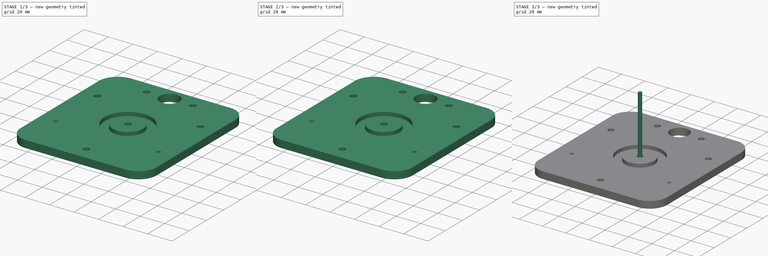
[diagram: build sequence overview — one tinted view per stage of 3, left to right]
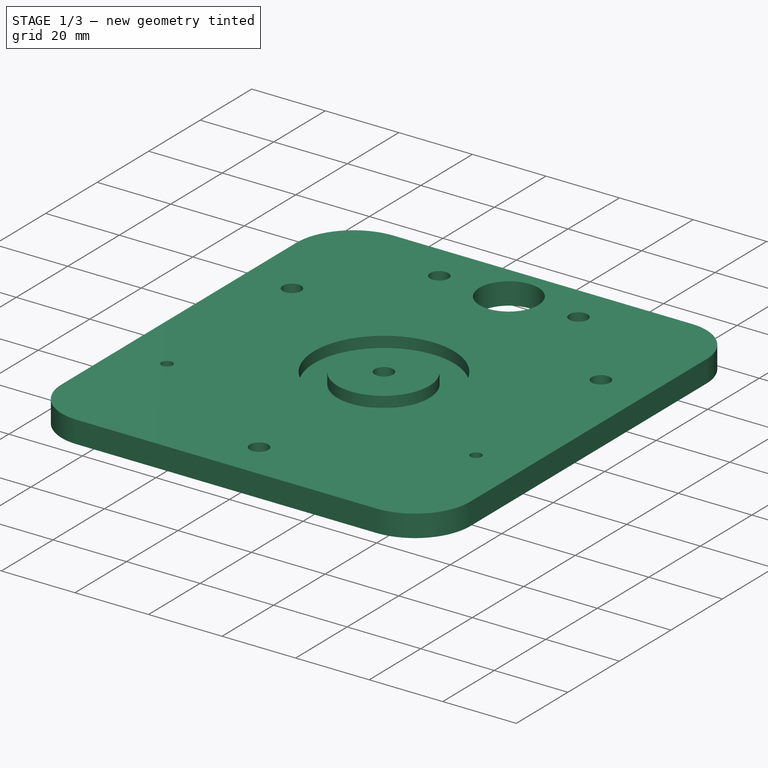
[diagram: stage 1 of 3 — iso view after this stage's code; geometry added in this stage tinted green]
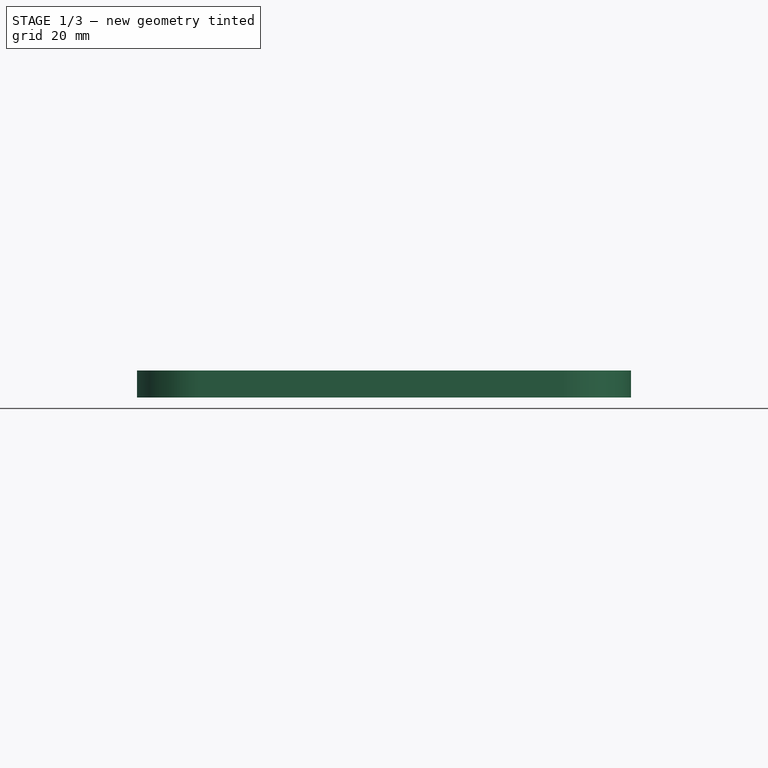
[diagram: stage 1 of 3 — front view after this stage's code; geometry added in this stage tinted green]
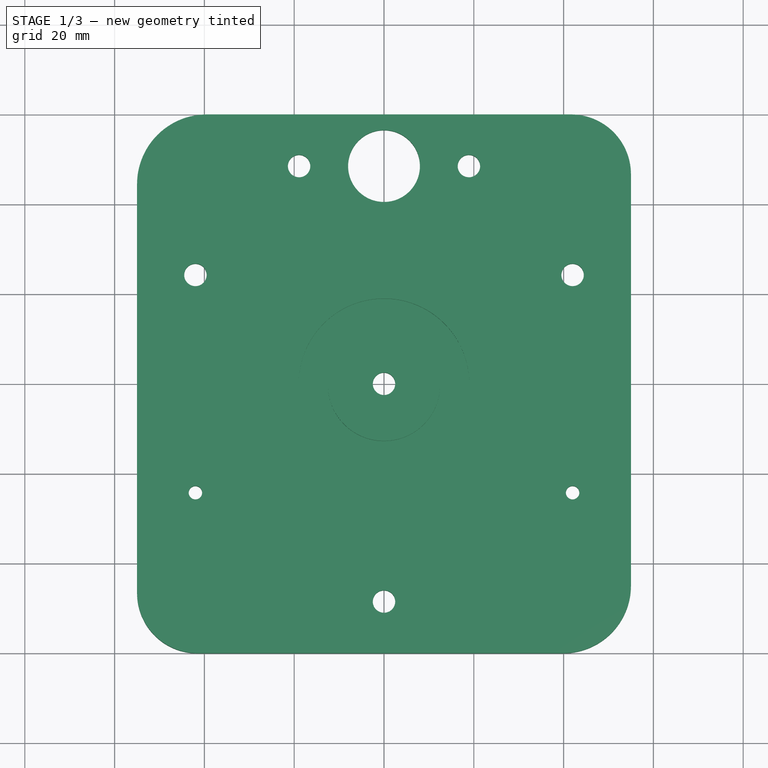
[diagram: stage 1 of 3 — top view after this stage's code; geometry added in this stage tinted green]
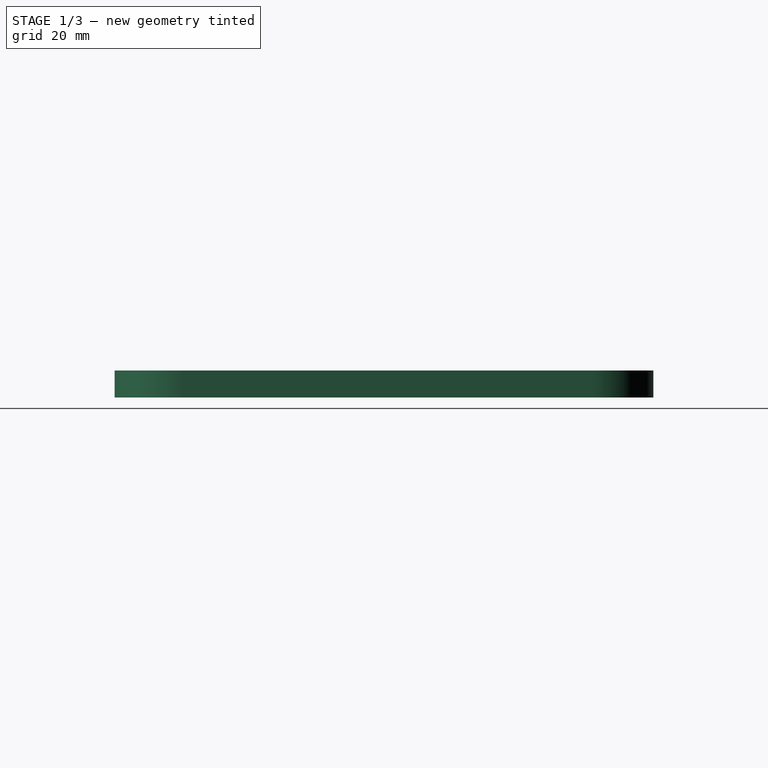
[diagram: stage 1 of 3 — right view after this stage's code; geometry added in this stage tinted green]
FCSTD DOCUMENT  (FreeCAD 0.20R29603 (Git))
Label: Base_board_for_manual_test
License: All rights reserved
LicenseURL: http://en.wikipedia.org/wiki/All_rights_reserved
objects: Path::FeaturePython×8, Part::FeaturePython×3, App::DocumentObjectGroup×3, Sketcher::SketchObject×2, PartDesign::Pad×1, App::FeaturePython×1, PartDesign::Pocket×1, PartDesign::Body×1
note: 15 computed .brp shape members not serialized (recipe doc carries the construction recipe); baked Part::Feature solids carry a one-line shape summary decoded from their .brp

FEATURE [Sketcher::SketchObject] Sketch
  FullyConstrained = false
  MapMode = 5
  Support = -> [XY_Plane]
  sketch-geometry (27):
    g0: LineSegment StartX=-55 StartY=-46.5765 StartZ=0 EndX=-55 EndY=44.4437 EndZ=0
    g1: LineSegment StartX=-39.4437 StartY=60 StartZ=0 EndX=41.6436 EndY=60 EndZ=0
    g2: LineSegment StartX=55 StartY=46.6436 StartZ=0 EndX=55 EndY=-44.9183 EndZ=0
    g3: LineSegment StartX=39.9183 StartY=-60 StartZ=0 EndX=-41.5765 EndY=-60 EndZ=0
    g4: GeomPoint X=-4.45e-14 Y=0 Z=0
    g5: Circle CenterX=-4.45e-14 CenterY=0 CenterZ=0 NormalX=0 NormalY=0 NormalZ=1 AngleXU=0 Radius=2.5
    g6: Circle CenterX=-4.45e-14 CenterY=0 CenterZ=0 NormalX=0 NormalY=0 NormalZ=1 AngleXU=0 Radius=48.5
    g7: Circle CenterX=-4.45e-14 CenterY=48.5 CenterZ=0 NormalX=0 NormalY=0 NormalZ=1 AngleXU=0 Radius=8
    g8: ArcOfCircle CenterX=-4.45e-14 CenterY=0 CenterZ=0 NormalX=0 NormalY=0 NormalZ=1 AngleXU=0 Radius=48.5 StartAngle=1.5708 EndAngle=3.66519
    g9: ArcOfCircle CenterX=-4.45e-14 CenterY=0 CenterZ=0 NormalX=0 NormalY=0 NormalZ=1 AngleXU=0 Radius=48.5 StartAngle=5.75959 EndAngle=7.85398
    g10: Circle CenterX=-42.0022 CenterY=-24.25 CenterZ=0 NormalX=0 NormalY=0 NormalZ=1 AngleXU=0 Radius=1.5
    g11: Circle CenterX=42.0022 CenterY=-24.25 CenterZ=0 NormalX=0 NormalY=0 NormalZ=1 AngleXU=0 Radius=1.5
    g12: ArcOfCircle CenterX=-39.4437 CenterY=44.4437 CenterZ=0 NormalX=0 NormalY=0 NormalZ=1 AngleXU=0 Radius=15.5563 StartAngle=1.5708 EndAngle=3.14159
    g13: GeomPoint X=-55 Y=60 Z=0
    g14: ArcOfCircle CenterX=41.6436 CenterY=46.6436 CenterZ=0 NormalX=0 NormalY=0 NormalZ=1 AngleXU=0 Radius=13.3564 StartAngle=0 EndAngle=1.5708
    g15: GeomPoint X=55 Y=60 Z=0
    g16: ArcOfCircle CenterX=39.9183 CenterY=-44.9183 CenterZ=0 NormalX=0 NormalY=0 NormalZ=1 AngleXU=0 Radius=15.0817 StartAngle=4.71239 EndAngle=6.28319
    g17: GeomPoint X=55 Y=-60 Z=0
    g18: ArcOfCircle CenterX=-41.5765 CenterY=-46.5765 CenterZ=0 NormalX=0 NormalY=0 NormalZ=1 AngleXU=0 Radius=13.4235 StartAngle=3.14159 EndAngle=4.71239
    g19: GeomPoint X=-55 Y=-60 Z=0
    g20: Circle CenterX=-18.9111 CenterY=48.5 CenterZ=0 NormalX=0 NormalY=0 NormalZ=1 AngleXU=0 Radius=2.5
    g21: Circle CenterX=18.9111 CenterY=48.5 CenterZ=0 NormalX=0 NormalY=0 NormalZ=1 AngleXU=0 Radius=2.5
    g22: Circle CenterX=-4.45e-14 CenterY=-48.5 CenterZ=0 NormalX=0 NormalY=0 NormalZ=1 AngleXU=0 Radius=2.5
    g23: ArcOfCircle CenterX=-4.45e-14 CenterY=0 CenterZ=0 NormalX=0 NormalY=0 NormalZ=1 AngleXU=0 Radius=48.5 StartAngle=4.71239 EndAngle=6.80678
    g24: ArcOfCircle CenterX=-4.45e-14 CenterY=0 CenterZ=0 NormalX=0 NormalY=0 NormalZ=1 AngleXU=0 Radius=48.5 StartAngle=2.61799 EndAngle=4.71239
    g25: Circle CenterX=42.0022 CenterY=24.25 CenterZ=0 NormalX=0 NormalY=0 NormalZ=1 AngleXU=0 Radius=2.5
    g26: Circle CenterX=-42.0022 CenterY=24.25 CenterZ=0 NormalX=0 NormalY=0 NormalZ=1 AngleXU=0 Radius=2.5
  constraints (58):
    c: Horizontal(g1)
    c: Horizontal(g3)
    c: Vertical(g0)
    c: Vertical(g2)
    c: Symmetric(g15,g19,g4)
    c: Coincident(g4,g-1)
    c: Coincident(g5,g4)
    c: Diameter(g5) = 5
    c: Coincident(g6,g5)
    c: Diameter(g6) = 97
    c: PointOnObject(g7,g6)
    c: Vertical(g7,g5)
    c: DistanceX(g19,g17) = 110
    c: DistanceY(g19,g13) = 120
    c: Diameter(g7) = 16
    c: Coincident(g8,g5)
    c: Coincident(g8,g7)
    c: Angle(g8) = 2.0944
    c: Coincident(g9,g5)
    c: Coincident(g9,g7)
    c: Angle(g9) = 2.0944
    c: Coincident(g11,g9)
    c: Equal(g10,g11)
    c: Diameter(g10) = 3
    c: Coincident(g8,g10)
    c: PointOnObject(g13,g0)
    c: PointOnObject(g13,g1)
    c: Tangent(g0,g12) = 1.5708
    c: Tangent(g1,g12) = 1.5708
    c: PointOnObject(g15,g1)
    c: PointOnObject(g15,g2)
    c: Tangent(g1,g14) = 1.5708
    c: Tangent(g2,g14) = 1.5708
    c: PointOnObject(g17,g2)
    c: PointOnObject(g17,g3)
    c: Tangent(g2,g16) = 1.5708
    c: Tangent(g3,g16) = 1.5708
    c: PointOnObject(g19,g0)
    c: PointOnObject(g19,g3)
    c: Tangent(g0,g18) = 1.5708
    c: Tangent(g3,g18) = 1.5708
    c: Symmetric(g20,g21,g7)
    c: Horizontal(g20,g7)
    c: Equal(g20,g21)
    c: Diameter(g20) = 5
    c: Vertical(g22,g5)
    c: PointOnObject(g22,g6)
    c: Coincident(g23,g5)
    c: Coincident(g23,g22)
    c: Coincident(g24,g5)
    c: Coincident(g24,g22)
    c: Angle(g24) = 2.0944
    c: Coincident(g25,g23)
    c: Coincident(g26,g24)
    c: Equal(g22,g26)
    c: Equal(g22,g25)
    c: Diameter(g22) = 5
    c: Angle(g23) = 2.0944
FEATURE [PartDesign::Pad] Pad
  Direction = (0,0,1)
  Length = 6
  Length2 = 10
  Profile = -> Sketch
  ReferenceAxis = -> Sketch [N_Axis]
  Reversed = true
  Type = 0
FEATURE [Path::FeaturePython] _mm_Endmill  label="3mm Endmill001"  # Path/CAM operation (typed FeaturePython)
  HorizFeed = 3.33333
  HorizRapid = 3.33333
  SpindleDir = 0
  SpindleSpeed = 0
  Tool = -> ToolBit001
  ToolNumber = 2
  VertFeed = 1.66667
  VertRapid = 1.66667
  expr: HorizRapid = SetupSheet.HorizRapid
  expr: VertRapid = SetupSheet.VertRapid
FEATURE [App::DocumentObjectGroup] Tools
  Group = -> [_mm_Endmill]
FEATURE [Sketcher::SketchObject] Sketch001
  FullyConstrained = false
  MapMode = 5
  Support = -> [Pad]
  sketch-geometry (2):
    g0: Circle CenterX=0 CenterY=0 CenterZ=0 NormalX=0 NormalY=0 NormalZ=1 AngleXU=0 Radius=19
    g1: Circle CenterX=0 CenterY=-0.224477 CenterZ=0 NormalX=0 NormalY=0 NormalZ=1 AngleXU=0 Radius=12.5
  constraints (4):
    c: Coincident(g0,g-1)
    c: Diameter(g0) = 38
    c: PointOnObject(g1,g-2)
    c: Diameter(g1) = 25
FEATURE [PartDesign::Pocket] Pocket
  BaseFeature = -> Pad
  Direction = (0,0,-1)
  Length = 3
  Length2 = 5
  Profile = -> Sketch001
  ReferenceAxis = -> Sketch001 [N_Axis]
  Type = 0
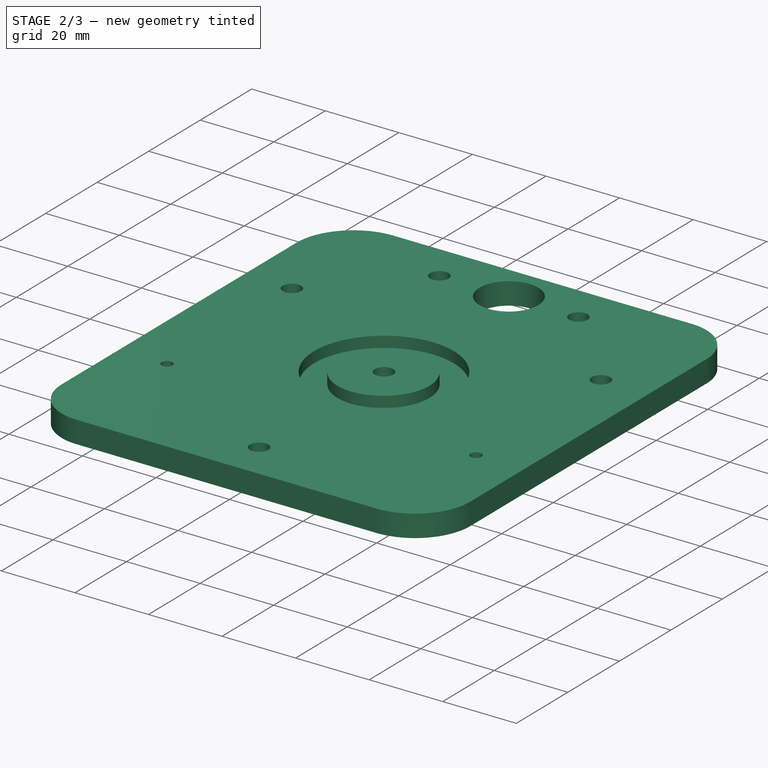
[diagram: stage 2 of 3 — iso view after this stage's code; geometry added in this stage tinted green]
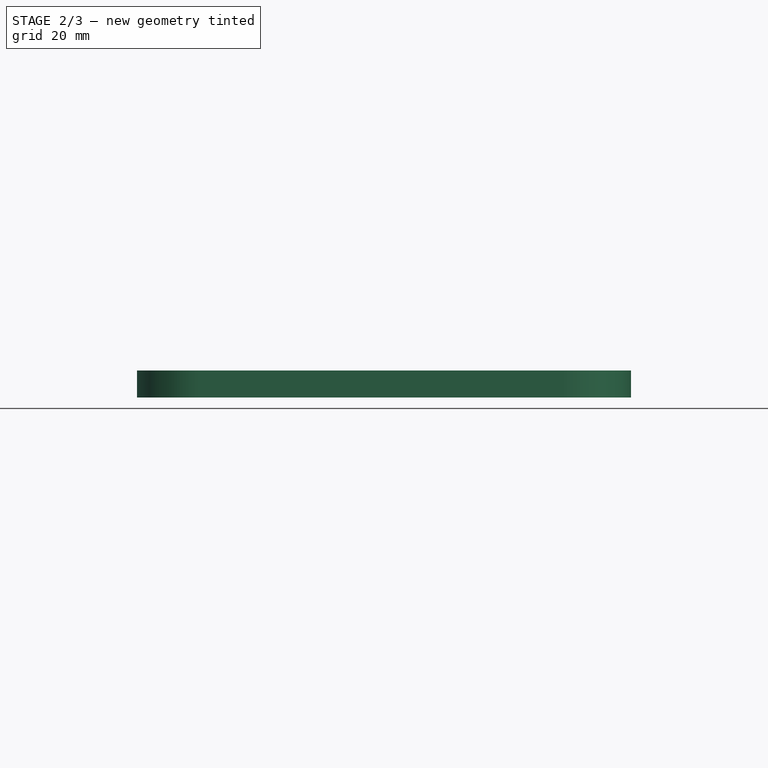
[diagram: stage 2 of 3 — front view after this stage's code; geometry added in this stage tinted green]
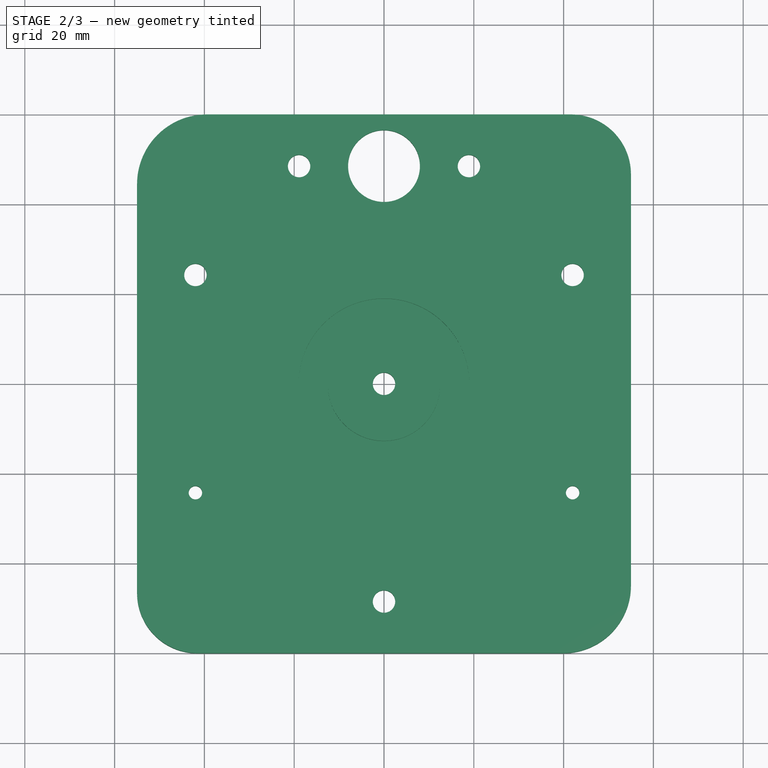
[diagram: stage 2 of 3 — top view after this stage's code; geometry added in this stage tinted green]
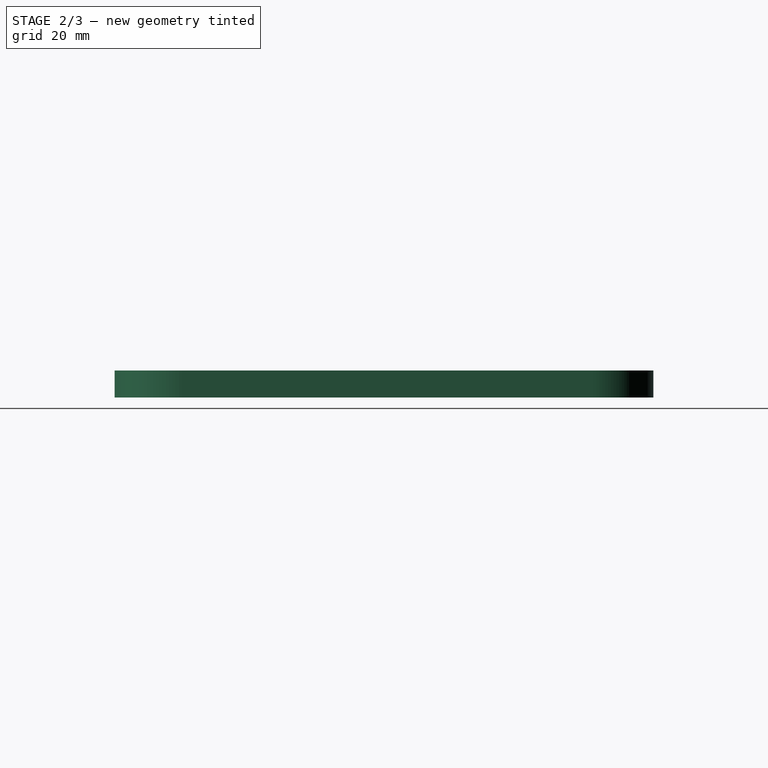
[diagram: stage 2 of 3 — right view after this stage's code; geometry added in this stage tinted green]
FEATURE [App::DocumentObjectGroup] Model
  Group = -> [Clone]
FEATURE [Path::FeaturePython] Adaptive  label="Adaptive_cenral_gear"  # Path/CAM operation (typed FeaturePython)
  Active = true
  Base = -> [Clone]
  ClearanceHeight = 5
  CoolantMode = 0
  CycleTime = 00:22:12
  ExtensionCorners = true
  ExtensionLengthDefault = 1.5
  FinalDepth = -3
  FinishDepth = 0
  FinishingProfile = true
  ForceInsideOut = false
  HelixAngle = 5
  HelixConeAngle = 0
  HelixDiameterLimit = 4
  KeepToolDownRatio = 3
  LiftDistance = 0
  OpFinalDepth = -3
  OpStartDepth = 0
  OpStockZMax = 0
  OpStockZMin = -6
  OpToolDiameter = 3
  OperationType = 1
  SafeHeight = 3
  Side = 1
  StartDepth = 0
  StepDown = 6
  StepOver = 20
  StockToLeave = 0
  StopProcessing = false
  Stopped = false
  Tolerance = 0.1
  ToolController = -> _mm_Endmill
  UseHelixArcs = false
  UseOutline = false
  expr: ClearanceHeight = OpStockZMax + SetupSheet.ClearanceHeightOffset
  expr: ExtensionLengthDefault = OpToolDiameter / 2
  expr: FinalDepth = OpFinalDepth
  expr: SafeHeight = OpStockZMax + SetupSheet.SafeHeightOffset
  expr: StartDepth = OpStartDepth
  expr: StepDown = OpToolDiameter * 2
FEATURE [Path::FeaturePython] Profile  label="Profile_hole"  # Path/CAM operation (typed FeaturePython)
  Active = true
  AreaParams:
    Tolerance = 1e-07
    FitArcs = True
    Simplify = False
    CleanDistance = 0.0
    Accuracy = 0.01
    Unit = 1.0
    MinArcPoints = 4
    MaxArcPoints = 100
    ClipperScale = 10000000.0
    Fill = 0
    Coplanar = 0
    Reorient = True
    Outline = False
    Explode = False
    OpenMode = 0
    Deflection = 0.01
    SubjectFill = 0
    ClipFill = 0
    Offset = -1.5
    ExtraPass = 0
    Stepover = 0.0
    LastStepover = 0.0
    JoinType = 0
    EndType = 0
    MiterLimit = 2.0
    RoundPrecision = 0.0
    PocketMode = 0
    ToolRadius = 1.0
    PocketExtraOffset = 0.0
    PocketStepover = 0.0
    PocketLastStepover = 0.0
    FromCenter = False
    Angle = 45.0
    AngleShift = 0.0
    Shift = 0.0
    Thicken = False
    SectionCount = -1
    Stepdown = 1.0
    SectionOffset = 0.0
    SectionTolerance = 1e-06
    SectionMode = 2
    Project = False
  Base = -> [Clone]
  ClearanceHeight = 5
  CoolantMode = 0
  CycleTime = 00:02:56
  Direction = 0
  FinalDepth = -6
  HandleMultipleFeatures = 0
  JoinType = 0
  MiterLimit = 0.1
  OffsetExtra = 0
  OpFinalDepth = -6
  OpStartDepth = 0
  OpStockZMax = 0
  OpStockZMin = -6
  OpToolDiameter = 3
  PathParams = {'orientation': 1, 'feedrate': 3.3333333333333335, 'feedrate_v': 1.6666666666666667, 'verbose': True, 'resume_height': 3.0, 'retraction': 5.0, 'return_end': True, 'preamble': False, 'start': Vector (17.916873691303817, 48.49040412186528, 5.0)}
  SafeHeight = 3
  Side = 1
  SplitArcs = false
  StartDepth = 0
  StartPoint = (0,0,0)
  StepDown = 3
  ToolController = -> _mm_Endmill
  UseComp = true
  UseStartPoint = false
  processCircles = false
  processHoles = false
  processPerimeter = true
  expr: ClearanceHeight = OpStockZMax + SetupSheet.ClearanceHeightOffset
  expr: FinalDepth = OpFinalDepth
  expr: SafeHeight = OpStockZMax + SetupSheet.SafeHeightOffset
  expr: StartDepth = OpStartDepth
  expr: StepDown = OpToolDiameter
FEATURE [Path::FeaturePython] Drilling  label="Drilling_for_axis"  # Path/CAM operation (typed FeaturePython)
  Active = true
  AddTipLength = false
  Base = -> [Clone]
  ClearanceHeight = 5
  CoolantMode = 0
  CycleTime = 00:00:51
  Disabled = Clone.Face12 | Clone.Face14 | Clone.Face15 | Clone.Face16 | Clone.Face17 | Clone.Face18 | Clone.Face19 | Clone.Face20
  DwellEnabled = false
  DwellTime = 1
  ExtraOffset = 0
  FinalDepth = -2.5
  OpFinalDepth = -3
  OpStartDepth = 0
  OpStockZMax = 0
  OpStockZMin = -6
  OpToolDiameter = 3
  PeckDepth = 0.45
  PeckEnabled = true
  RetractHeight = 3
  ReturnLevel = 0
  SafeHeight = 3
  StartDepth = 0
  ToolController = -> _mm_Endmill
  expr: ClearanceHeight = OpStockZMax + SetupSheet.ClearanceHeightOffset
  expr: FinalDepth = OpFinalDepth + 0.5 mm
  expr: PeckDepth = OpToolDiameter * 0.15
  expr: RetractHeight = StartDepth + SetupSheet.SafeHeightOffset
  expr: SafeHeight = OpStockZMax + SetupSheet.SafeHeightOffset
  expr: StartDepth = OpStartDepth
FEATURE [Path::FeaturePython] Profile001  label="Profile_OUTCUT"  # Path/CAM operation (typed FeaturePython)
  Active = true
  AreaParams:
    Tolerance = 1e-07
    FitArcs = True
    Simplify = False
    CleanDistance = 0.0
    Accuracy = 0.01
    Unit = 1.0
    MinArcPoints = 4
    MaxArcPoints = 100
    ClipperScale = 10000000.0
    Fill = 0
    Coplanar = 0
    Reorient = True
    Outline = False
    Explode = False
    OpenMode = 0
    Deflection = 0.01
    SubjectFill = 0
    ClipFill = 0
    Offset = 1.5
    ExtraPass = 0
    Stepover = 0.0
    LastStepover = 0.0
    JoinType = 0
    EndType = 0
    MiterLimit = 2.0
    RoundPrecision = 0.0
    PocketMode = 0
    ToolRadius = 1.0
    PocketExtraOffset = 0.0
    PocketStepover = 0.0
    PocketLastStepover = 0.0
    FromCenter = False
    Angle = 45.0
    AngleShift = 0.0
    Shift = 0.0
    Thicken = False
    SectionCount = -1
    Stepdown = 1.0
    SectionOffset = 0.0
    SectionTolerance = 1e-06
    SectionMode = 2
    Project = False
  Base = -> [Clone]
  ClearanceHeight = 5
  CoolantMode = 0
  CycleTime = 00:09:23
  Direction = 0
  FinalDepth = -6
  HandleMultipleFeatures = 0
  JoinType = 0
  MiterLimit = 0.1
  OffsetExtra = 0
  OpFinalDepth = -6
  OpStartDepth = 0
  OpStockZMax = 0
  OpStockZMin = -6
  OpToolDiameter = 3
  PathParams = {'orientation': 1, 'feedrate': 3.3333333333333335, 'feedrate_v': 1.6666666666666667, 'verbose': True, 'resume_height': 3.0, 'retraction': 5.0, 'return_end': True, 'preamble': False}
  SafeHeight = 3
  Side = 0
  SplitArcs = false
  StartDepth = 0
  StartPoint = (0,0,0)
  StepDown = 1.5
  ToolController = -> _mm_Endmill
  UseComp = true
  UseStartPoint = false
  processCircles = false
  processHoles = false
  processPerimeter = true
  expr: ClearanceHeight = OpStockZMax + SetupSheet.ClearanceHeightOffset
  expr: FinalDepth = OpFinalDepth
  expr: SafeHeight = OpStockZMax + SetupSheet.SafeHeightOffset
  expr: StartDepth = OpStartDepth
  expr: StepDown = OpToolDiameter / 2
FEATURE [Path::FeaturePython] Profile002  label="Profile_Central_Gear"  # Path/CAM operation (typed FeaturePython)
  Active = true
  AreaParams:
    Tolerance = 1e-07
    FitArcs = True
    Simplify = False
    CleanDistance = 0.0
    Accuracy = 0.01
    Unit = 1.0
    MinArcPoints = 4
    MaxArcPoints = 100
    ClipperScale = 10000000.0
    Fill = 0
    Coplanar = 0
    Reorient = True
    Outline = False
    Explode = False
    OpenMode = 0
    Deflection = 0.01
    SubjectFill = 0
    ClipFill = 0
    Offset = 1.5
    ExtraPass = 0
    Stepover = 0.0
    LastStepover = 0.0
    JoinType = 0
    EndType = 0
    MiterLimit = 2.0
    RoundPrecision = 0.0
    PocketMode = 0
    ToolRadius = 1.0
    PocketExtraOffset = 0.0
    PocketStepover = 0.0
    PocketLastStepover = 0.0
    FromCenter = False
    Angle = 45.0
    AngleShift = 0.0
    Shift = 0.0
    Thicken = False
    SectionCount = -1
    Stepdown = 1.0
    SectionOffset = 0.0
    SectionTolerance = 1e-06
    SectionMode = 2
    Project = False
  Base = -> [Clone]
  ClearanceHeight = 5
  CoolantMode = 0
  CycleTime = 00:00:43
  Direction = 0
  FinalDepth = -3
  HandleMultipleFeatures = 0
  JoinType = 0
  MiterLimit = 0.1
  OffsetExtra = 0
  OpFinalDepth = -3
  OpStartDepth = 0
  OpStockZMax = 0
  OpStockZMin = -6
  OpToolDiameter = 3
  PathParams = {'orientation': 1, 'feedrate': 3.3333333333333335, 'feedrate_v': 1.6666666666666667, 'verbose': True, 'resume_height': 3.0, 'retraction': 5.0, 'return_end': True, 'preamble': False}
  SafeHeight = 3
  Side = 0
  SplitArcs = false
  StartDepth = 0
  StartPoint = (0,0,0)
  StepDown = 3
  ToolController = -> _mm_Endmill
  UseComp = true
  UseStartPoint = false
  processCircles = false
  processHoles = false
  processPerimeter = true
  expr: ClearanceHeight = OpStockZMax + SetupSheet.ClearanceHeightOffset
  expr: FinalDepth = OpFinalDepth
  expr: SafeHeight = OpStockZMax + SetupSheet.SafeHeightOffset
  expr: StartDepth = OpStartDepth
  expr: StepDown = OpToolDiameter
FEATURE [Path::FeaturePython] Profile003  label="Profile_hole_finish"  # Path/CAM operation (typed FeaturePython)
  Active = true
  AreaParams:
    Tolerance = 1e-07
    FitArcs = True
    Simplify = False
    CleanDistance = 0.0
    Accuracy = 0.01
    Unit = 1.0
    MinArcPoints = 4
    MaxArcPoints = 100
    ClipperScale = 10000000.0
    Fill = 0
    Coplanar = 0
    Reorient = True
    Outline = False
    Explode = False
    OpenMode = 0
    Deflection = 0.01
    SubjectFill = 0
    ClipFill = 0
    Offset = -1.5
    ExtraPass = 0
    Stepover = 0.0
    LastStepover = 0.0
    JoinType = 0
    EndType = 0
    MiterLimit = 2.0
    RoundPrecision = 0.0
    PocketMode = 0
    ToolRadius = 1.0
    PocketExtraOffset = 0.0
    PocketStepover = 0.0
    PocketLastStepover = 0.0
    FromCenter = False
    Angle = 45.0
    AngleShift = 0.0
    Shift = 0.0
    Thicken = False
    SectionCount = -1
    Stepdown = 1.0
    SectionOffset = 0.0
    SectionTolerance = 1e-06
    SectionMode = 2
    Project = False
  Base = -> [Clone]
  ClearanceHeight = 5
  CoolantMode = 0
  CycleTime = 00:02:56
  Direction = 0
  FinalDepth = -6
  HandleMultipleFeatures = 0
  JoinType = 0
  MiterLimit = 0.1
  OffsetExtra = 0
  OpFinalDepth = -6
  OpStartDepth = 0
  OpStockZMax = 0
  OpStockZMin = -6
  OpToolDiameter = 3
  PathParams = {'orientation': 1, 'feedrate': 3.3333333333333335, 'feedrate_v': 1.6666666666666667, 'verbose': True, 'resume_height': 3.0, 'retraction': 5.0, 'return_end': True, 'preamble': False, 'start': Vector (17.916873691303817, 48.49040412186528, 5.0)}
  SafeHeight = 3
  Side = 1
  SplitArcs = false
  StartDepth = 0
  StartPoint = (0,0,0)
  StepDown = 3
  ToolController = -> _mm_Endmill
  UseComp = true
  UseStartPoint = false
  processCircles = false
  processHoles = false
  processPerimeter = true
  expr: ClearanceHeight = OpStockZMax + SetupSheet.ClearanceHeightOffset
  expr: FinalDepth = OpFinalDepth
  expr: SafeHeight = OpStockZMax + SetupSheet.SafeHeightOffset
  expr: StartDepth = OpStartDepth
  expr: StepDown = OpToolDiameter
FEATURE [App::DocumentObjectGroup] Operations
  Group = -> [Adaptive,Profile002,Profile,Profile003,Drilling,Profile001]
FEATURE [Part::FeaturePython] Clone027  label="Stock-Body"  # Draft clone (typed FeaturePython)
  AttacherType = Attacher::AttachEngine3D
  Fuse = false
  Objects = -> [Body]
  PathResource = Stock
  Scale = (1,1,1)
  StockType = Unknown
FEATURE [Path::FeaturePython] Job  # Path/CAM operation (typed FeaturePython)
  CycleTime = 00:39:01
  Fixtures = G54
  GeometryTolerance = 0.01
  JobType = 0
  LastPostProcessDate = 2023-08-25 11:08:23.700021
  LastPostProcessOutput = <path>
  Model = -> Model
  Operations = -> Operations
  OrderOutputBy = 0
  PostProcessor = 8
  PostProcessorArgs = --bcnc
  PostProcessorOutputFile = <path>
  SetupSheet = -> SetupSheet
  SplitOutput = false
  Stock = -> Clone027
  Tools = -> Tools
note: 4 file-system paths scrubbed to <path> (originals preserved in the JSON sidecar)
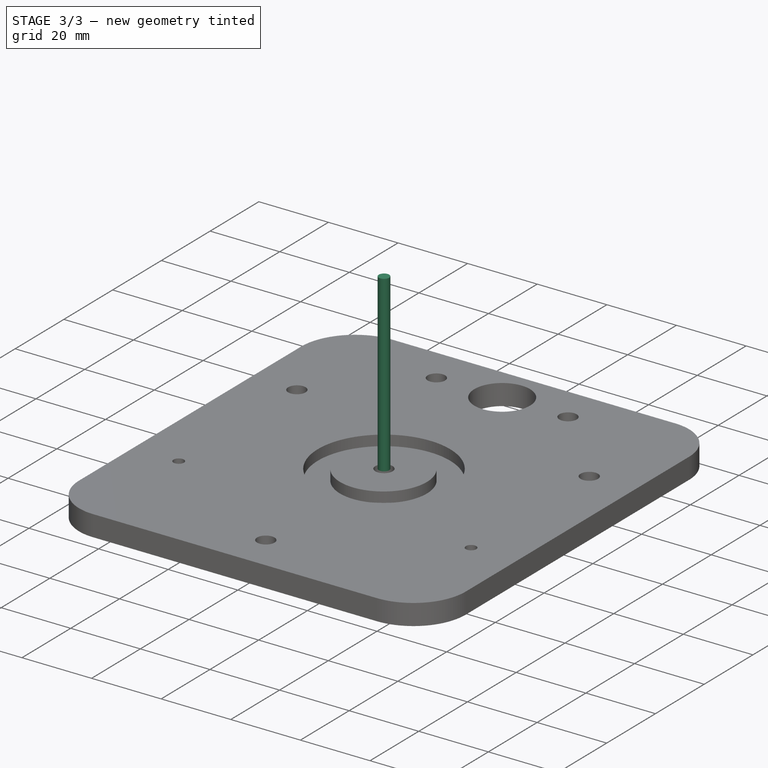
[diagram: stage 3 of 3 — iso view after this stage's code; geometry added in this stage tinted green]
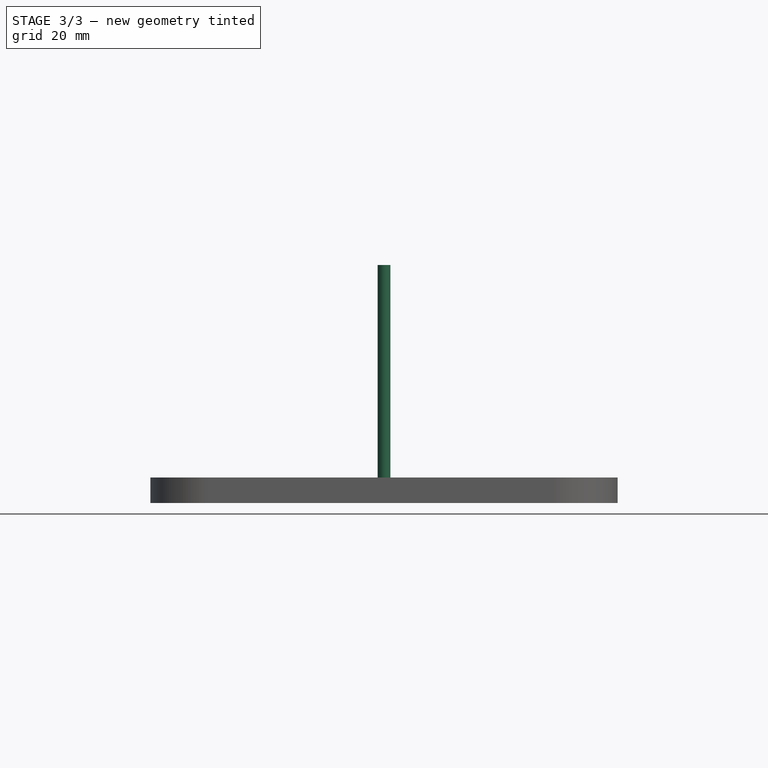
[diagram: stage 3 of 3 — front view after this stage's code; geometry added in this stage tinted green]
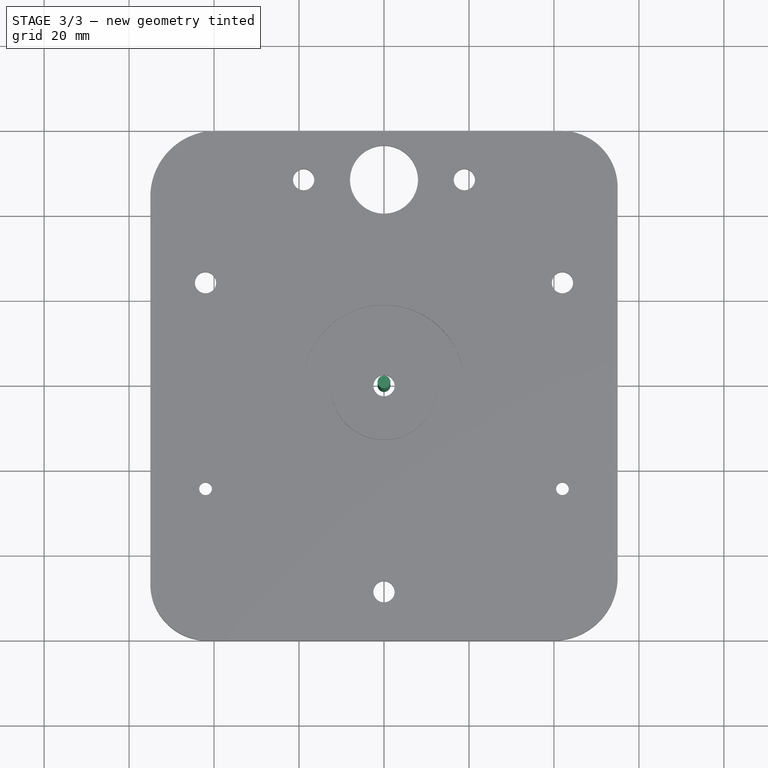
[diagram: stage 3 of 3 — top view after this stage's code; geometry added in this stage tinted green]
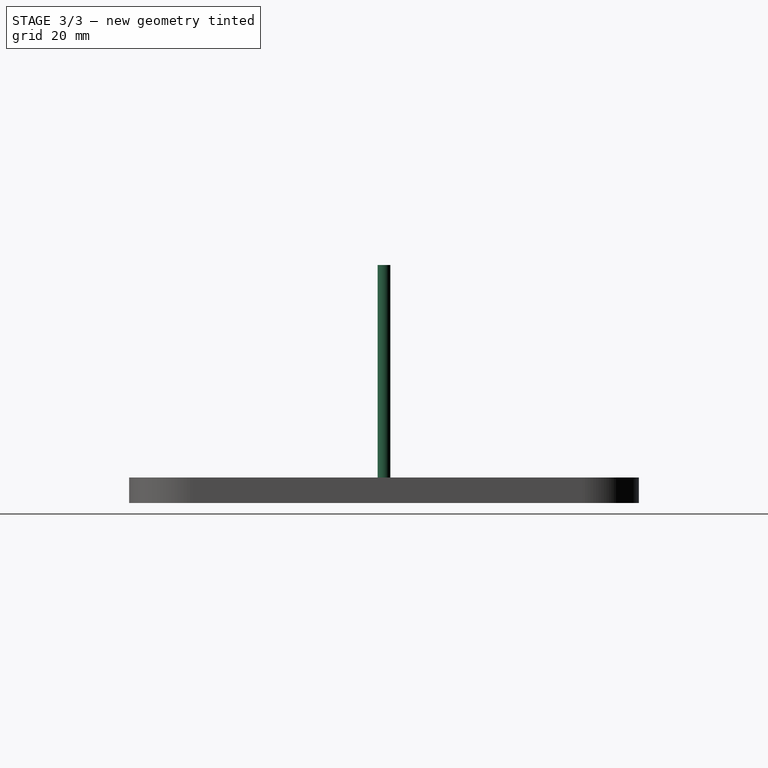
[diagram: stage 3 of 3 — right view after this stage's code; geometry added in this stage tinted green]
FEATURE [App::FeaturePython] SetupSheet  # Path/CAM operation (typed FeaturePython)
  ClearanceHeightExpression = OpStockZMax+SetupSheet.ClearanceHeightOffset
  ClearanceHeightOffset = 5
  CoolantMode = 0
  CoolantModes = None | Flood | Mist
  FinalDepthExpression = OpFinalDepth
  HorizRapid = 3.33333
  SafeHeightExpression = OpStockZMax+SetupSheet.SafeHeightOffset
  SafeHeightOffset = 3
  StartDepthExpression = OpStartDepth
  StepDownExpression = OpToolDiameter
  VertRapid = 1.66667
FEATURE [Part::FeaturePython] ToolBit001  label="3mm Endmill"  # Path/CAM toolbit (typed FeaturePython)
  BitPropertyNames = Chipload | CuttingEdgeHeight | Diameter | Flutes | Length | Material | ShankDiameter | SpindleDirection
  BitShape = <path>
  Chipload = 0
  CuttingEdgeHeight = 15
  Diameter = 3
  File = <path>
  Flutes = 0
  Length = 50
  Material = 0
  ShankDiameter = 3
  ShapeName = endmill
  SpindleDirection = 0
FEATURE [PartDesign::Body] Body
  Group = -> [Sketch,Pad,Sketch001,Pocket]
  Origin = -> Origin
  Tip = -> Pocket
FEATURE [Part::FeaturePython] Clone  label="Model-Body"  # Draft clone (typed FeaturePython)
  AttacherType = Attacher::AttachEngine3D
  Fuse = false
  Objects = -> [Body]
  PathResource = Model
  Scale = (1,1,1)
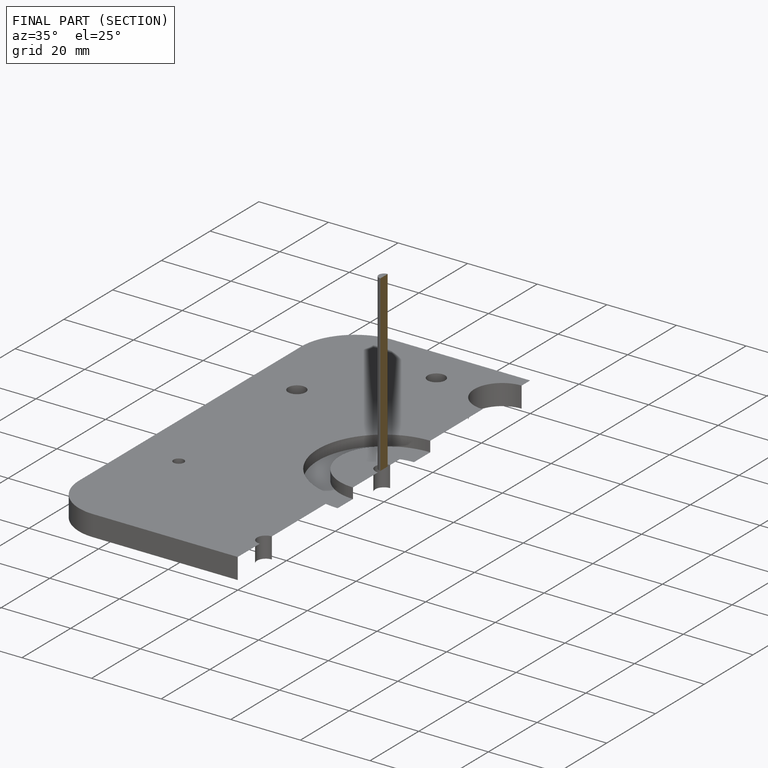
[diagram: finished part — half-section view (interior)]
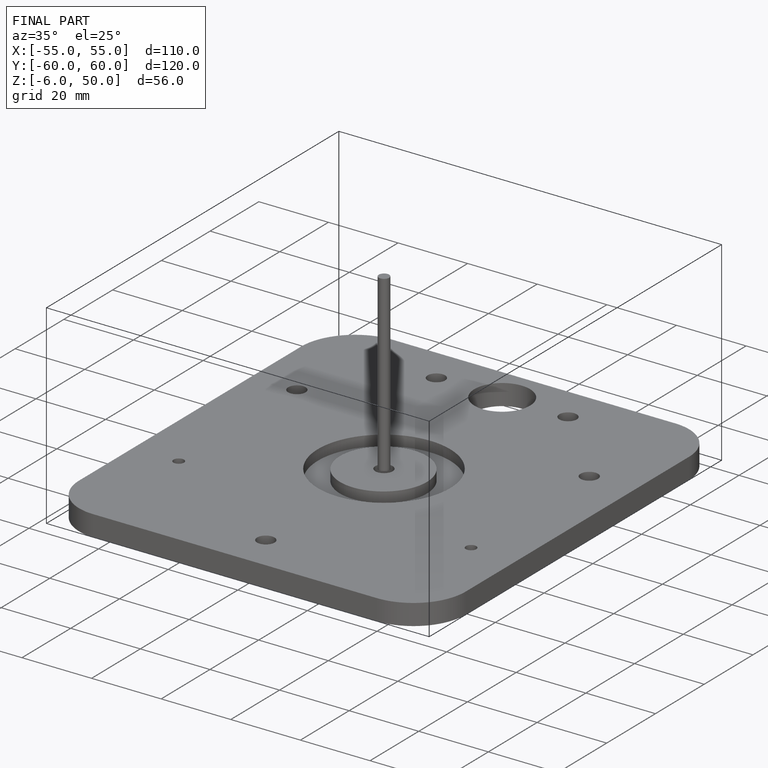
[diagram: finished part — iso view with bounding-box wireframe]
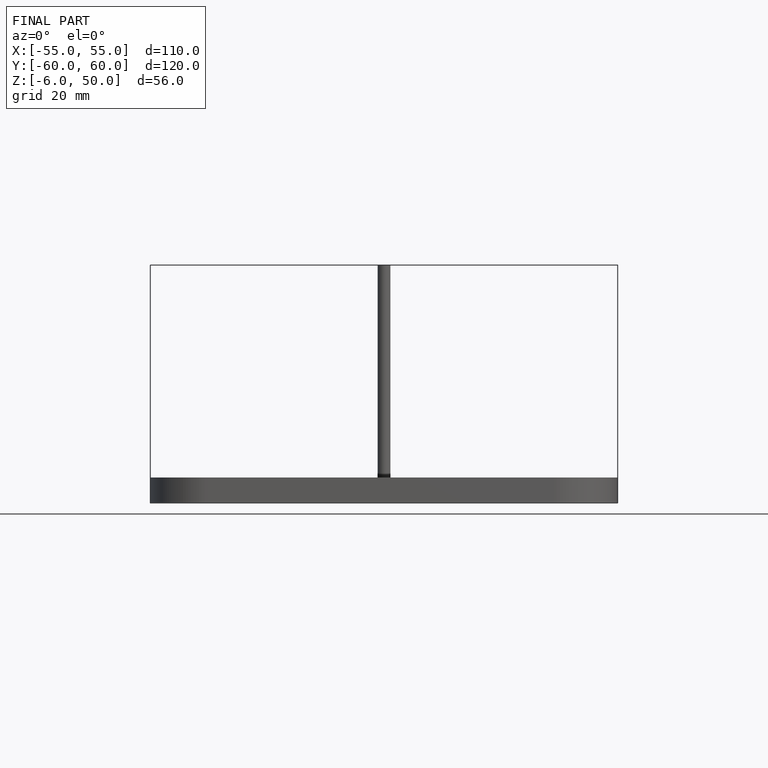
[diagram: finished part — front view with bounding-box wireframe]
